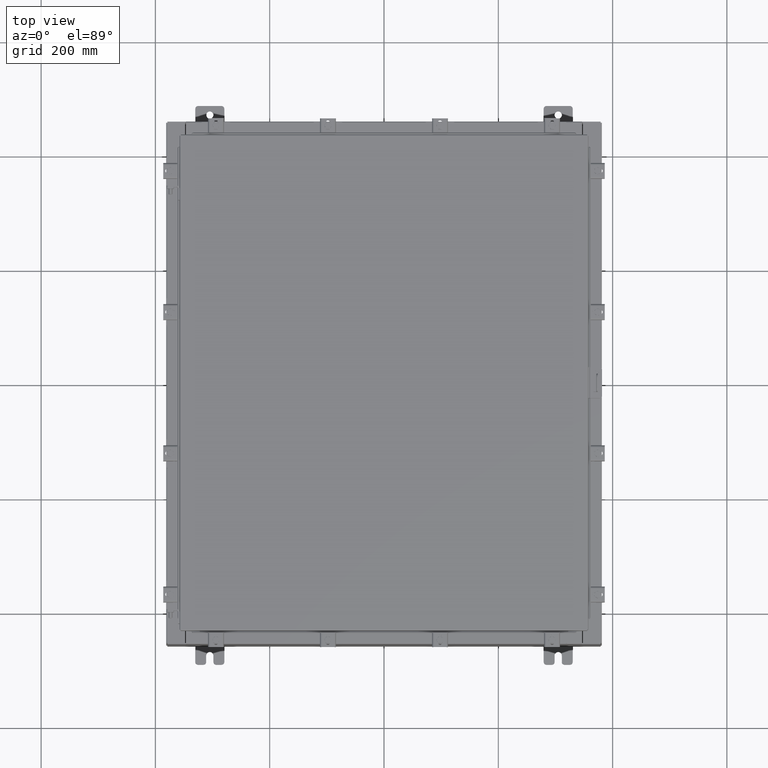
[diagram: clean part render]
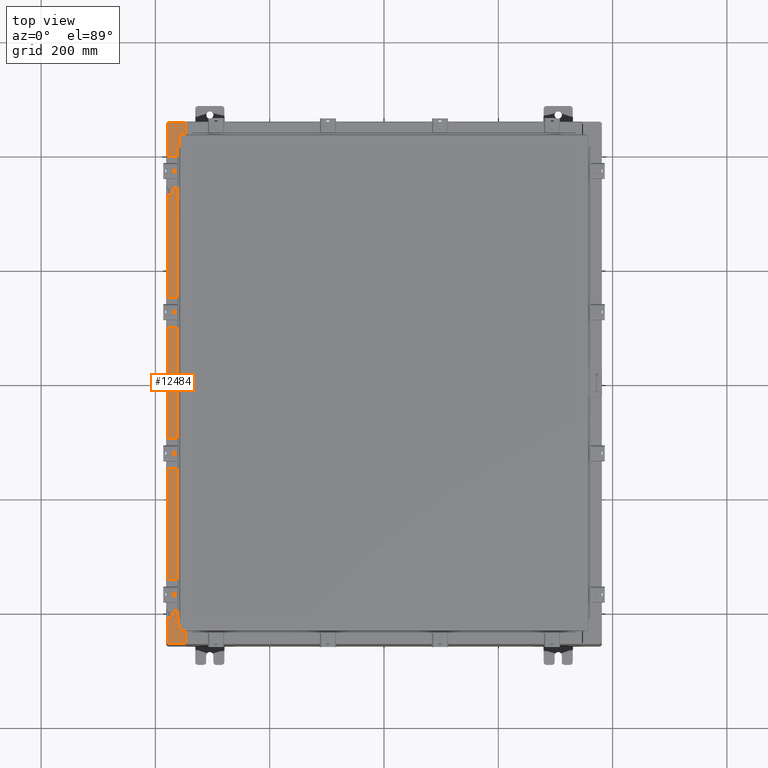
[diagram: same view with one face highlighted and labeled with its STEP entity id]
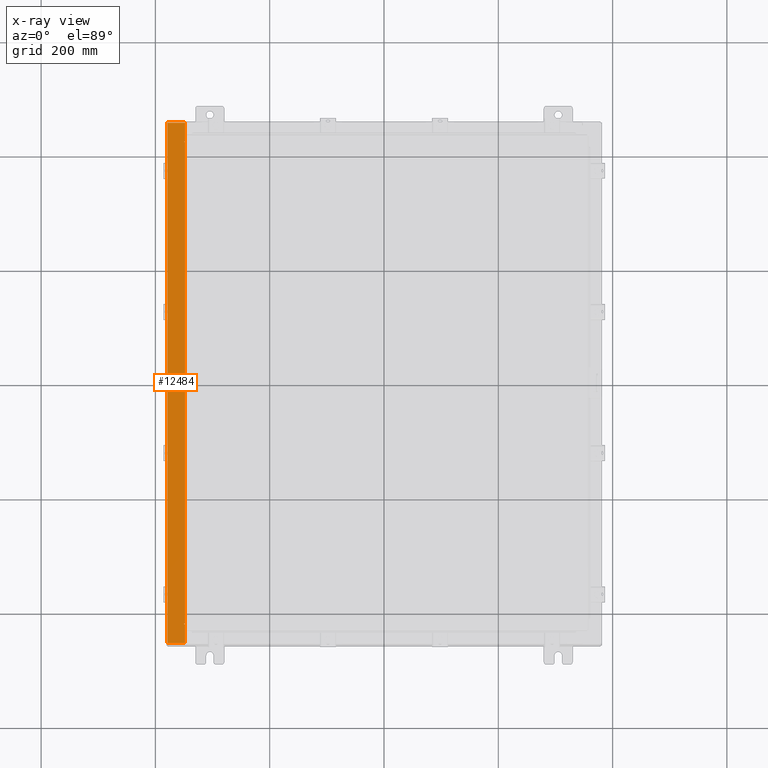
[diagram: x-ray of the same camera — body ghosted, the highlighted face saturated]
A machine part, top view. The second image highlights one B-rep face of the part: STEP entity #12484.
The next image is the same camera in x-ray: the body ghosted, the highlighted face saturated — about 0% of this face is hidden behind the body in this view.
In plain terms, the highlighted planar face has unit normal (0, 0, -1).
Its self-contained STEP definition (entity closure, byte-faithful):
#123 = AXIS2_PLACEMENT_3D ( 'NONE', #18798, #7461, #20700 ) ;
#534 = AXIS2_PLACEMENT_3D ( 'NONE', #21560, #15928, #4575 ) ;
#1304 = CARTESIAN_POINT ( 'NONE',  ( -13.75005000000003900, -16.59374999999998900, 9.925300000000007100 ) ) ;
#1405 = DIRECTION ( 'NONE',  ( -7.132762385546384700E-015, -0.0000000000000000000, 1.000000000000000000 ) ) ;
#1884 = VERTEX_POINT ( 'NONE', #4991 ) ;
#2102 = VECTOR ( 'NONE', #5966, 39.37007874015748100 ) ;
#2171 = EDGE_CURVE ( 'NONE', #2206, #1884, #4209, .T. ) ;
#2206 = VERTEX_POINT ( 'NONE', #4130 ) ;
#2212 = VECTOR ( 'NONE', #12016, 39.37007874015748100 ) ;
#2349 = CARTESIAN_POINT ( 'NONE',  ( -13.75005000000003900, -16.63109999999998600, 9.925300000000007100 ) ) ;
#2365 = ORIENTED_EDGE ( 'NONE', *, *, #7420, .F. ) ;
#2370 = CARTESIAN_POINT ( 'NONE',  ( -13.75005000000003900, 16.63110000000000000, 9.925300000000007100 ) ) ;
#2655 = PLANE ( 'NONE',  #534 ) ;
#3149 = EDGE_CURVE ( 'NONE', #21830, #14290, #13356, .T. ) ;
#3861 = VERTEX_POINT ( 'NONE', #22755 ) ;
#4058 = CARTESIAN_POINT ( 'NONE',  ( -13.69970000000003900, 16.63110000000000400, 9.925300000000007100 ) ) ;
#4130 = CARTESIAN_POINT ( 'NONE',  ( -13.69970000000003900, 16.63110000000000400, 9.925300000000007100 ) ) ;
#4209 = LINE ( 'NONE', #19040, #13689 ) ;
#4289 = ORIENTED_EDGE ( 'NONE', *, *, #13282, .F. ) ;
#4575 = DIRECTION ( 'NONE',  ( -1.000000000000000000, 0.0000000000000000000, -7.132762385546384700E-015 ) ) ;
#4868 = EDGE_CURVE ( 'NONE', #11029, #11711, #14460, .T. ) ;
#4991 = CARTESIAN_POINT ( 'NONE',  ( -13.69970000000003900, 17.92530000000000000, 9.925300000000007100 ) ) ;
#5122 = ORIENTED_EDGE ( 'NONE', *, *, #4868, .T. ) ;
#5390 = VECTOR ( 'NONE', #6011, 39.37007874015748100 ) ;
#5412 = VECTOR ( 'NONE', #7517, 39.37007874015748100 ) ;
#5461 = CARTESIAN_POINT ( 'NONE',  ( -13.71270000000004100, -16.59374999999998900, 9.925300000000007100 ) ) ;
#5597 = CARTESIAN_POINT ( 'NONE',  ( -14.91230000000003700, 17.92530000000000000, 9.925299999999998200 ) ) ;
#5759 = CARTESIAN_POINT ( 'NONE',  ( -13.71270000000004100, -16.59374999999998900, 9.925300000000007100 ) ) ;
#5950 = DIRECTION ( 'NONE',  ( -1.000000000000000000, -4.340572780399910900E-014, 0.0000000000000000000 ) ) ;
#5966 = DIRECTION ( 'NONE',  ( 1.000000000000000000, 0.0000000000000000000, 0.0000000000000000000 ) ) ;
#6011 = DIRECTION ( 'NONE',  ( -0.0000000000000000000, -1.000000000000000000, -0.0000000000000000000 ) ) ;
#6491 = CARTESIAN_POINT ( 'NONE',  ( -13.69970000000003900, -17.92530000000000000, 9.925300000000007100 ) ) ;
#7179 = LINE ( 'NONE', #9718, #2102 ) ;
#7287 = LINE ( 'NONE', #23344, #2212 ) ;
#7420 = EDGE_CURVE ( 'NONE', #8679, #11711, #7287, .T. ) ;
#7461 = DIRECTION ( 'NONE',  ( -7.132762385546384700E-015, -0.0000000000000000000, 1.000000000000000000 ) ) ;
#7517 = DIRECTION ( 'NONE',  ( -0.0000000000000000000, 1.000000000000000000, -0.0000000000000000000 ) ) ;
#7699 = DIRECTION ( 'NONE',  ( -4.276128853718621600E-031, 1.000000000000000000, -3.050061104355376000E-045 ) ) ;
#7797 = ORIENTED_EDGE ( 'NONE', *, *, #20894, .F. ) ;
#7932 = VERTEX_POINT ( 'NONE', #2370 ) ;
#8679 = VERTEX_POINT ( 'NONE', #2349 ) ;
#9159 = EDGE_CURVE ( 'NONE', #3861, #21756, #19923, .T. ) ;
#9409 = VECTOR ( 'NONE', #17910, 39.37007874015748100 ) ;
#9718 = CARTESIAN_POINT ( 'NONE',  ( -13.75005000000003900, 16.59375000000000000, 9.925300000000007100 ) ) ;
#10079 = EDGE_CURVE ( 'NONE', #2206, #7932, #10698, .T. ) ;
#10099 = VECTOR ( 'NONE', #5950, 39.37007874015748100 ) ;
#10698 = LINE ( 'NONE', #4058, #10099 ) ;
#11029 = VERTEX_POINT ( 'NONE', #6491 ) ;
#11711 = VERTEX_POINT ( 'NONE', #12675 ) ;
#11716 = VECTOR ( 'NONE', #17422, 39.37007874015748100 ) ;
#11909 = ORIENTED_EDGE ( 'NONE', *, *, #15045, .F. ) ;
#11919 = FACE_OUTER_BOUND ( 'NONE', #20330, .T. ) ;
#11982 = ORIENTED_EDGE ( 'NONE', *, *, #3149, .F. ) ;
#12016 = DIRECTION ( 'NONE',  ( 1.000000000000000000, -4.340572780399910900E-014, 0.0000000000000000000 ) ) ;
#12160 = CARTESIAN_POINT ( 'NONE',  ( -13.69970000000003900, -5.858168245728885200E-030, 9.925300000000007100 ) ) ;
#12484 = ADVANCED_FACE ( 'NONE', ( #11919 ), #2655, .F. ) ;
#12675 = CARTESIAN_POINT ( 'NONE',  ( -13.69970000000003900, -16.63109999999998600, 9.925300000000007100 ) ) ;
#12740 = CARTESIAN_POINT ( 'NONE',  ( -13.75005000000003900, 16.61242500000000200, 9.925300000000007100 ) ) ;
#13282 = EDGE_CURVE ( 'NONE', #23094, #24168, #7179, .T. ) ;
#13335 = CIRCLE ( 'NONE', #123, 0.01867499999999949400 ) ;
#13356 = LINE ( 'NONE', #5461, #21042 ) ;
#13689 = VECTOR ( 'NONE', #7699, 39.37007874015748100 ) ;
#14226 = CARTESIAN_POINT ( 'NONE',  ( -13.75005000000003900, 16.59375000000000000, 9.925300000000007100 ) ) ;
#14290 = VERTEX_POINT ( 'NONE', #1304 ) ;
#14344 = ORIENTED_EDGE ( 'NONE', *, *, #19418, .F. ) ;
#14460 = LINE ( 'NONE', #12160, #9409 ) ;
#14673 = DIRECTION ( 'NONE',  ( 1.000000000000000000, 0.0000000000000000000, 0.0000000000000000000 ) ) ;
#15045 = EDGE_CURVE ( 'NONE', #14290, #8679, #13335, .T. ) ;
#15271 = ORIENTED_EDGE ( 'NONE', *, *, #19289, .T. ) ;
#15301 = ORIENTED_EDGE ( 'NONE', *, *, #10079, .F. ) ;
#15547 = CARTESIAN_POINT ( 'NONE',  ( -7.105562016127585500E-014, 17.92530000000000000, 9.925300000000104800 ) ) ;
#15928 = DIRECTION ( 'NONE',  ( 7.132762385546384700E-015, 0.0000000000000000000, -1.000000000000000000 ) ) ;
#16062 = LINE ( 'NONE', #23073, #5390 ) ;
#16614 = ORIENTED_EDGE ( 'NONE', *, *, #2171, .T. ) ;
#16802 = LINE ( 'NONE', #15547, #11716 ) ;
#17422 = DIRECTION ( 'NONE',  ( -1.000000000000000000, -1.087045829762336900E-031, -7.132762385546384700E-015 ) ) ;
#17546 = ORIENTED_EDGE ( 'NONE', *, *, #9159, .F. ) ;
#17652 = CARTESIAN_POINT ( 'NONE',  ( -13.71270000000004100, 16.59375000000000000, 9.925300000000007100 ) ) ;
#17834 = VECTOR ( 'NONE', #20923, 39.37007874015748100 ) ;
#17910 = DIRECTION ( 'NONE',  ( -4.276128853718621600E-031, 1.000000000000000000, -3.050061104355376000E-045 ) ) ;
#18017 = AXIS2_PLACEMENT_3D ( 'NONE', #12740, #1405, #14673 ) ;
#18436 = LINE ( 'NONE', #19013, #17834 ) ;
#18687 = DIRECTION ( 'NONE',  ( -1.000000000000000000, 0.0000000000000000000, 0.0000000000000000000 ) ) ;
#18798 = CARTESIAN_POINT ( 'NONE',  ( -13.75005000000003900, -16.61242499999998800, 9.925300000000007100 ) ) ;
#18838 = CARTESIAN_POINT ( 'NONE',  ( -14.91230000000003700, 17.92530000000000000, 9.925299999999998200 ) ) ;
#19013 = CARTESIAN_POINT ( 'NONE',  ( -7.105562016127585500E-014, -17.92530000000000000, 9.925300000000104800 ) ) ;
#19040 = CARTESIAN_POINT ( 'NONE',  ( -13.69970000000003900, -5.858168245728885200E-030, 9.925300000000007100 ) ) ;
#19289 = EDGE_CURVE ( 'NONE', #3861, #11029, #18436, .T. ) ;
#19418 = EDGE_CURVE ( 'NONE', #24168, #21830, #16062, .T. ) ;
#19923 = LINE ( 'NONE', #18838, #5412 ) ;
#20330 = EDGE_LOOP ( 'NONE', ( #15301, #16614, #23122, #17546, #15271, #5122, #2365, #11909, #11982, #14344, #4289, #7797 ) ) ;
#20700 = DIRECTION ( 'NONE',  ( 1.000000000000000000, 0.0000000000000000000, 0.0000000000000000000 ) ) ;
#20894 = EDGE_CURVE ( 'NONE', #7932, #23094, #23367, .T. ) ;
#20923 = DIRECTION ( 'NONE',  ( 1.000000000000000000, -8.758115402030108600E-047, 7.132762385546384700E-015 ) ) ;
#21042 = VECTOR ( 'NONE', #18687, 39.37007874015748100 ) ;
#21560 = CARTESIAN_POINT ( 'NONE',  ( -7.105562016127585500E-014, 0.0000000000000000000, 9.925300000000104800 ) ) ;
#21756 = VERTEX_POINT ( 'NONE', #5597 ) ;
#21830 = VERTEX_POINT ( 'NONE', #5759 ) ;
#22755 = CARTESIAN_POINT ( 'NONE',  ( -14.91230000000003700, -17.92530000000000000, 9.925299999999998200 ) ) ;
#23073 = CARTESIAN_POINT ( 'NONE',  ( -13.71270000000004100, 16.59374999999999600, 9.925300000000007100 ) ) ;
#23094 = VERTEX_POINT ( 'NONE', #14226 ) ;
#23122 = ORIENTED_EDGE ( 'NONE', *, *, #23459, .T. ) ;
#23344 = CARTESIAN_POINT ( 'NONE',  ( -13.75005000000003900, -16.63109999999998600, 9.925300000000007100 ) ) ;
#23367 = CIRCLE ( 'NONE', #18017, 0.01867499999999949400 ) ;
#23459 = EDGE_CURVE ( 'NONE', #1884, #21756, #16802, .T. ) ;
#24168 = VERTEX_POINT ( 'NONE', #17652 ) ;